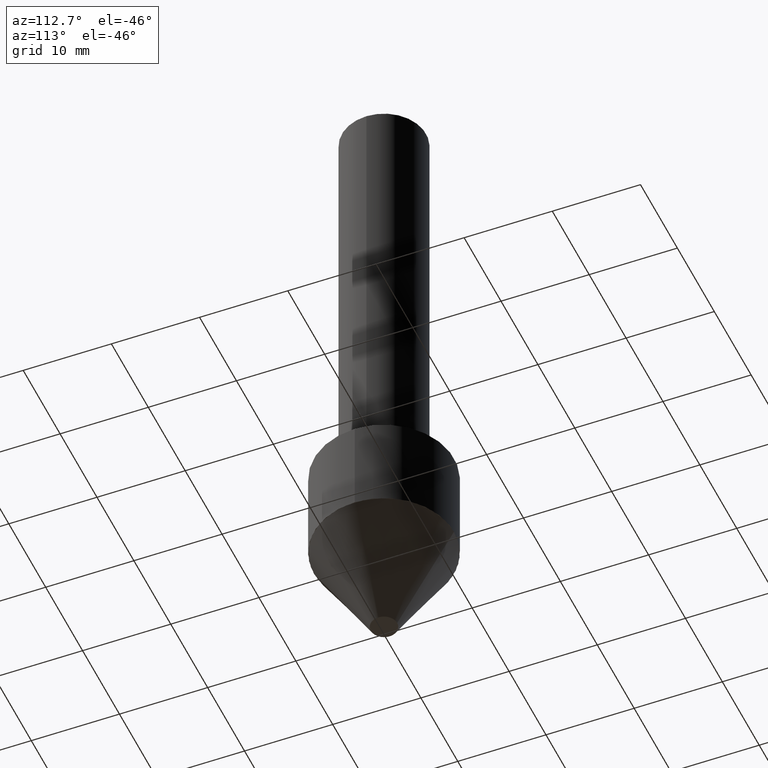
[diagram: clean part render]
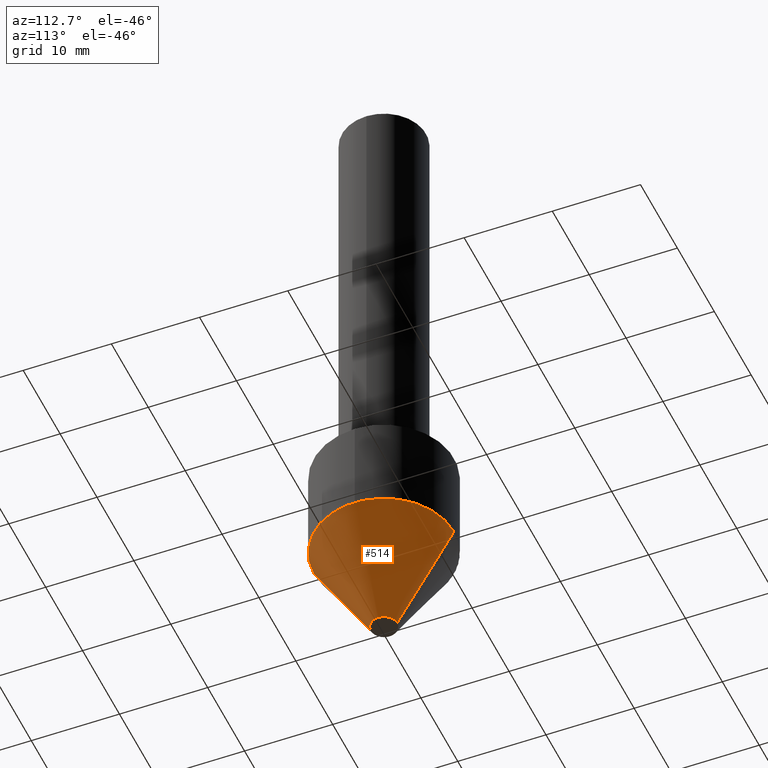
[diagram: same view with one face highlighted and labeled with its STEP entity id]
A machine part, auxiliary view. The second image highlights one B-rep face of the part: STEP entity #514.
In plain terms, the highlighted conical surface has half-angle 30 deg.
Its self-contained STEP definition (entity closure, byte-faithful):
#2 = ORIENTED_EDGE ( 'NONE', *, *, #251, .F. ) ;
#3 = CONICAL_SURFACE ( 'NONE', #138, 0.3124999999999998335, 0.5235987755983375624 ) ;
#27 = CARTESIAN_POINT ( 'NONE',  ( 5.939732351074985838E-29, -8.564652793296501748E-15, -2.440925120281329797 ) ) ;
#36 = DIRECTION ( 'NONE',  ( -2.534628000477946415E-29, 3.363800297989649412E-15, 1.000000000000000000 ) ) ;
#69 = DIRECTION ( 'NONE',  ( -6.982962677686265922E-15, -1.000000000000000000, 0.000000000000000000 ) ) ;
#88 = CIRCLE ( 'NONE', #506, 0.05899999999999981648 ) ;
#91 = VERTEX_POINT ( 'NONE', #274 ) ;
#95 = FACE_OUTER_BOUND ( 'NONE', #334, .T. ) ;
#123 = ORIENTED_EDGE ( 'NONE', *, *, #153, .T. ) ;
#138 = AXIS2_PLACEMENT_3D ( 'NONE', #27, #494, #181 ) ;
#153 = EDGE_CURVE ( 'NONE', #395, #91, #88, .T. ) ;
#181 = DIRECTION ( 'NONE',  ( -6.982962677686265133E-15, -1.000000000000000000, 3.496765431890258892E-15 ) ) ;
#201 = CARTESIAN_POINT ( 'NONE',  ( -2.182175836776896816E-15, -0.3125000000000083267, -2.440925120281328908 ) ) ;
#206 = LINE ( 'NONE', #328, #489 ) ;
#209 = VERTEX_POINT ( 'NONE', #201 ) ;
#219 = CIRCLE ( 'NONE', #417, 0.3124999999999998335 ) ;
#242 = CARTESIAN_POINT ( 'NONE',  ( 2.220446049250370273E-15, 0.3124999999999912847, -2.440925120281331129 ) ) ;
#251 = EDGE_CURVE ( 'NONE', #209, #294, #219, .T. ) ;
#274 = CARTESIAN_POINT ( 'NONE',  ( 1.319833131674450179E-15, 0.05899999999998977590, -2.880000000000000782 ) ) ;
#276 = CARTESIAN_POINT ( 'NONE',  ( 7.052623835516416387E-29, -1.004161300453393756E-14, -2.880000000000000782 ) ) ;
#287 = DIRECTION ( 'NONE',  ( -6.982962677686265133E-15, -1.000000000000000000, 3.496765431890258892E-15 ) ) ;
#294 = VERTEX_POINT ( 'NONE', #242 ) ;
#326 = LINE ( 'NONE', #411, #364 ) ;
#328 = CARTESIAN_POINT ( 'NONE',  ( 2.220446049250370273E-15, 0.3124999999999912847, -2.440925120281331129 ) ) ;
#332 = CARTESIAN_POINT ( 'NONE',  ( -4.119947979834178963E-16, -0.05900000000000985706, -2.880000000000000782 ) ) ;
#334 = EDGE_LOOP ( 'NONE', ( #123, #491, #2, #458 ) ) ;
#337 = EDGE_CURVE ( 'NONE', #395, #209, #326, .T. ) ;
#359 = CARTESIAN_POINT ( 'NONE',  ( 5.939732351074985838E-29, -8.564652793296501748E-15, -2.440925120281329797 ) ) ;
#361 = DIRECTION ( 'NONE',  ( -3.491481338843389735E-15, -0.5000000000000306422, 0.8660254037844209440 ) ) ;
#364 = VECTOR ( 'NONE', #361, 39.37007874015748143 ) ;
#366 = EDGE_CURVE ( 'NONE', #91, #294, #206, .T. ) ;
#395 = VERTEX_POINT ( 'NONE', #332 ) ;
#411 = CARTESIAN_POINT ( 'NONE',  ( -2.182175836776897210E-15, -0.3125000000000083267, -2.440925120281328908 ) ) ;
#417 = AXIS2_PLACEMENT_3D ( 'NONE', #359, #36, #287 ) ;
#430 = DIRECTION ( 'NONE',  ( -2.534628000477946415E-29, 3.363800297989649412E-15, 1.000000000000000000 ) ) ;
#458 = ORIENTED_EDGE ( 'NONE', *, *, #337, .F. ) ;
#484 = DIRECTION ( 'NONE',  ( 3.552713678800715500E-15, 0.5000000000000364153, 0.8660254037844175024 ) ) ;
#489 = VECTOR ( 'NONE', #484, 39.37007874015748854 ) ;
#491 = ORIENTED_EDGE ( 'NONE', *, *, #366, .T. ) ;
#494 = DIRECTION ( 'NONE',  ( -2.534628000477946415E-29, 3.363800297989649412E-15, 1.000000000000000000 ) ) ;
#506 = AXIS2_PLACEMENT_3D ( 'NONE', #276, #430, #69 ) ;
#514 = ADVANCED_FACE ( 'NONE', ( #95 ), #3, .T. ) ;